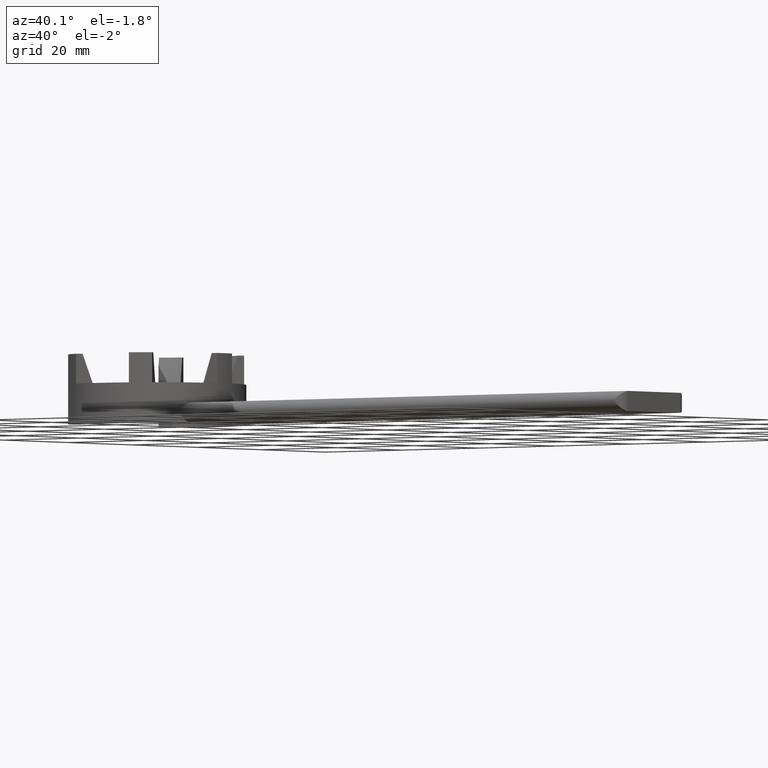
[diagram: clean part render]
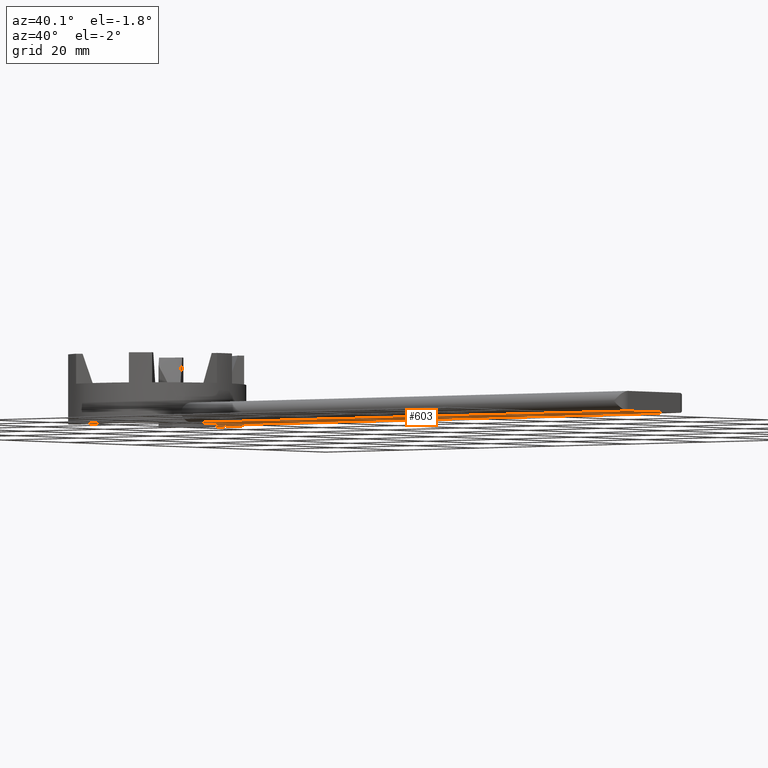
[diagram: same view with one face highlighted and labeled with its STEP entity id]
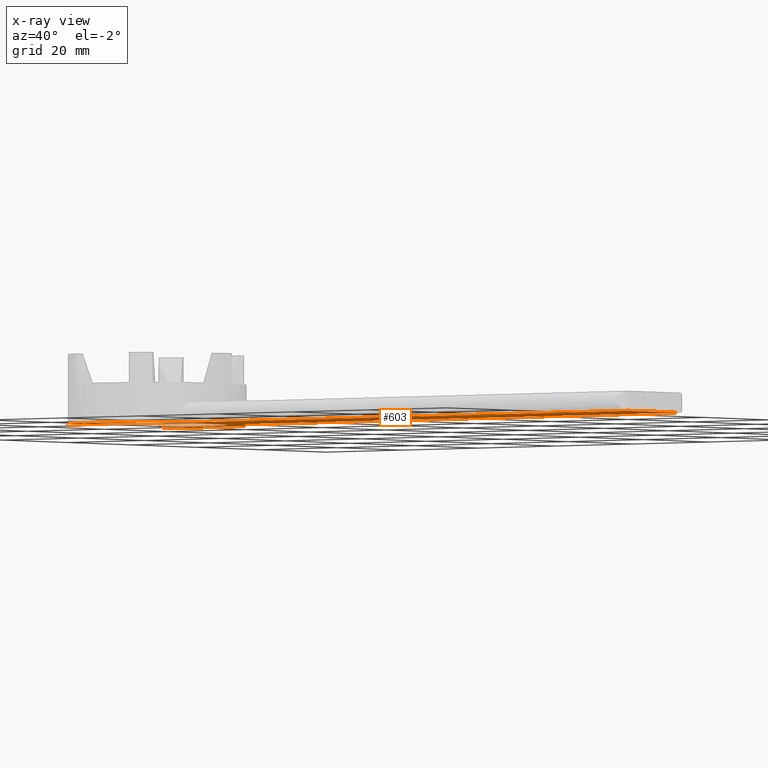
[diagram: x-ray of the same camera — body ghosted, the highlighted face saturated]
A machine part, auxiliary view. The second image highlights one B-rep face of the part: STEP entity #603.
The next image is the same camera in x-ray: the body ghosted, the highlighted face saturated — about 0% of this face is hidden behind the body in this view.
In plain terms, the highlighted planar face has unit normal (0, 0, 1).
Its self-contained STEP definition (entity closure, byte-faithful):
#74=PLANE('',#1090);
#107=CIRCLE('',#1091,18.);
#108=CIRCLE('',#1092,14.1);
#109=CIRCLE('',#1093,18.);
#138=VERTEX_POINT('',#779);
#139=VERTEX_POINT('',#780);
#166=VERTEX_POINT('',#911);
#169=VERTEX_POINT('',#921);
#170=VERTEX_POINT('',#923);
#171=VERTEX_POINT('',#925);
#172=VERTEX_POINT('',#927);
#173=VERTEX_POINT('',#929);
#174=VERTEX_POINT('',#931);
#175=VERTEX_POINT('',#933);
#194=VECTOR('',#642,1.);
#198=VECTOR('',#673,1.);
#202=VECTOR('',#683,0.999999999999999);
#203=VECTOR('',#684,1.);
#204=VECTOR('',#687,1.);
#205=VECTOR('',#688,1.);
#206=VECTOR('',#691,1.);
#238=LINE('',#778,#194);
#242=LINE('',#910,#198);
#246=LINE('',#922,#202);
#247=LINE('',#924,#203);
#248=LINE('',#928,#204);
#249=LINE('',#930,#205);
#250=LINE('',#934,#206);
#282=EDGE_CURVE('',#138,#139,#238,.F.);
#311=EDGE_CURVE('',#166,#138,#242,.T.);
#316=EDGE_CURVE('',#169,#139,#107,.T.);
#317=EDGE_CURVE('',#169,#170,#246,.F.);
#318=EDGE_CURVE('',#171,#170,#247,.F.);
#319=EDGE_CURVE('',#172,#171,#108,.F.);
#320=EDGE_CURVE('',#173,#172,#248,.F.);
#321=EDGE_CURVE('',#173,#174,#249,.F.);
#322=EDGE_CURVE('',#175,#174,#109,.T.);
#323=EDGE_CURVE('',#175,#166,#250,.T.);
#402=ORIENTED_EDGE('',*,*,#311,.T.);
#403=ORIENTED_EDGE('',*,*,#282,.T.);
#404=ORIENTED_EDGE('',*,*,#316,.F.);
#405=ORIENTED_EDGE('',*,*,#317,.T.);
#406=ORIENTED_EDGE('',*,*,#318,.F.);
#407=ORIENTED_EDGE('',*,*,#319,.F.);
#408=ORIENTED_EDGE('',*,*,#320,.F.);
#409=ORIENTED_EDGE('',*,*,#321,.T.);
#410=ORIENTED_EDGE('',*,*,#322,.F.);
#411=ORIENTED_EDGE('',*,*,#323,.T.);
#541=EDGE_LOOP('',(#402,#403,#404,#405,#406,#407,#408,#409,#410,#411));
#572=FACE_BOUND('',#541,.T.);
#603=ADVANCED_FACE('',(#572),#74,.F.);
#642=DIRECTION('',(1.,1.20641408255495E-16,0.));
#673=DIRECTION('',(0.,-1.,0.));
#680=DIRECTION('',(0.,0.,1.));
#681=DIRECTION('',(0.,0.,1.));
#682=DIRECTION('',(-18.,0.,0.));
#683=DIRECTION('',(-0.5,-0.866025403784438,0.));
#684=DIRECTION('',(1.,1.34949929705898E-16,0.));
#685=DIRECTION('',(0.,0.,1.));
#686=DIRECTION('',(14.1,0.,0.));
#687=DIRECTION('',(-1.,1.34949929705898E-16,0.));
#688=DIRECTION('',(0.5,-0.866025403784439,0.));
#689=DIRECTION('',(0.,0.,1.));
#690=DIRECTION('',(-18.,0.,0.));
#691=DIRECTION('',(1.,-1.20641408255495E-16,0.));
#778=CARTESIAN_POINT('',(130.,-8.,0.));
#779=CARTESIAN_POINT('',(130.,-8.,0.));
#780=CARTESIAN_POINT('',(16.1245154965971,-8.00000000000002,0.));
#910=CARTESIAN_POINT('',(130.,5.,0.));
#911=CARTESIAN_POINT('',(130.,8.,0.));
#919=CARTESIAN_POINT('',(0.,0.,0.));
#920=CARTESIAN_POINT('',(0.,0.,0.));
#921=CARTESIAN_POINT('',(-10.9581286554684,-14.2800355871476,0.));
#922=CARTESIAN_POINT('',(-6.49664417718093,-6.55251779357379,0.));
#923=CARTESIAN_POINT('',(-9.98815965698058,-12.6,0.));
#924=CARTESIAN_POINT('',(1.62171204060999E-15,-12.6,0.));
#925=CARTESIAN_POINT('',(-6.32850693291869,-12.6,0.));
#926=CARTESIAN_POINT('',(0.,0.,0.));
#927=CARTESIAN_POINT('',(-6.32850693291869,12.6,0.));
#928=CARTESIAN_POINT('',(-6.42728558568855,12.6,0.));
#929=CARTESIAN_POINT('',(-9.98815965698052,12.6,0.));
#930=CARTESIAN_POINT('',(-6.01165967793697,5.7125,0.));
#931=CARTESIAN_POINT('',(-10.9581286554684,14.2800355871476,0.));
#932=CARTESIAN_POINT('',(0.,0.,0.));
#933=CARTESIAN_POINT('',(16.1245154965971,8.,0.));
#934=CARTESIAN_POINT('',(9.65131266043964E-16,8.,0.));
#1090=AXIS2_PLACEMENT_3D('',#919,#680,$);
#1091=AXIS2_PLACEMENT_3D('',#920,#681,#682);
#1092=AXIS2_PLACEMENT_3D('',#926,#685,#686);
#1093=AXIS2_PLACEMENT_3D('',#932,#689,#690);